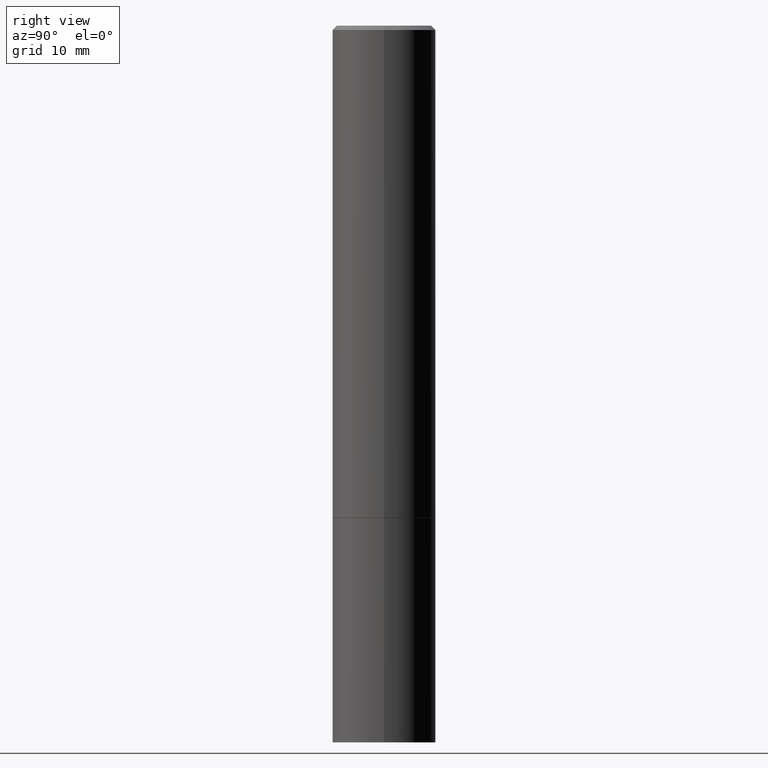
[diagram: clean part render]
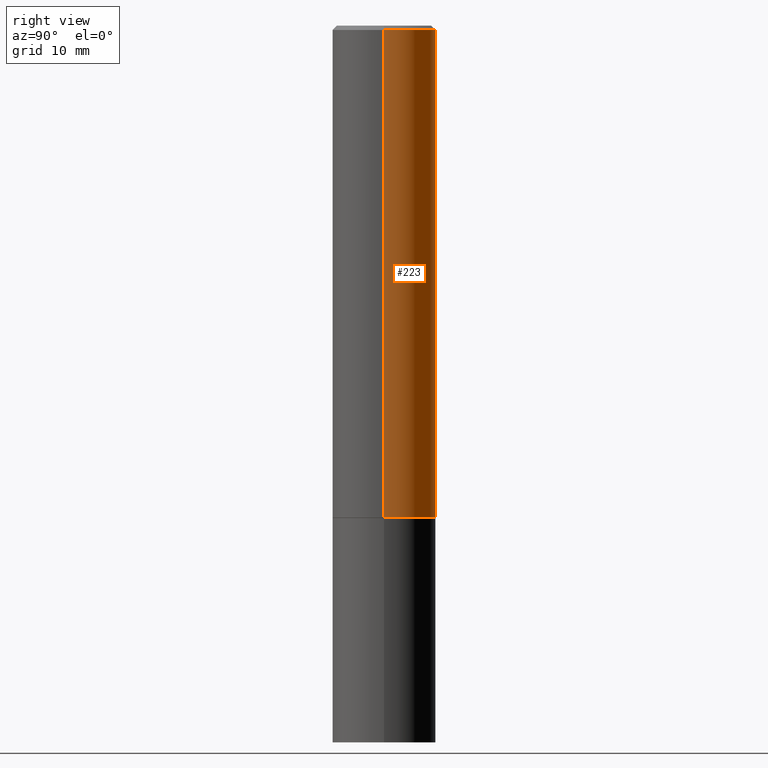
[diagram: same view with one face highlighted and labeled with its STEP entity id]
A machine part, right view. The second image highlights one B-rep face of the part: STEP entity #223.
In plain terms, the highlighted cylindrical surface (partial cylindrical patch) has radius 5.9995 mm, axis along (-0, 0, 1).
Its self-contained STEP definition (entity closure, byte-faithful):
#32 = CIRCLE ( 'NONE', #270, 0.2361999999999999933 ) ;
#42 = EDGE_CURVE ( 'NONE', #76, #285, #226, .T. ) ;
#59 = EDGE_LOOP ( 'NONE', ( #160, #99, #144, #215 ) ) ;
#61 = CARTESIAN_POINT ( 'NONE',  ( 4.890937612370284544E-31, -6.982962677686307633E-17, -0.02000000000000004552 ) ) ;
#67 = CARTESIAN_POINT ( 'NONE',  ( 0.2361999999999999933, -9.481117575628557435E-15, -2.243100000000000094 ) ) ;
#72 = VERTEX_POINT ( 'NONE', #206 ) ;
#76 = VERTEX_POINT ( 'NONE', #229 ) ;
#99 = ORIENTED_EDGE ( 'NONE', *, *, #42, .T. ) ;
#103 = VECTOR ( 'NONE', #330, 39.37007874015748143 ) ;
#111 = CARTESIAN_POINT ( 'NONE',  ( -0.2361999999999998545, 1.678301941865355605E-15, -1.161852468318208056E-29 ) ) ;
#123 = AXIS2_PLACEMENT_3D ( 'NONE', #291, #321, #295 ) ;
#144 = ORIENTED_EDGE ( 'NONE', *, *, #145, .F. ) ;
#145 = EDGE_CURVE ( 'NONE', #72, #285, #361, .T. ) ;
#149 = DIRECTION ( 'NONE',  ( 1.000000000000000000, -6.982962677686266711E-15, 0.000000000000000000 ) ) ;
#155 = DIRECTION ( 'NONE',  ( -2.445468806185136597E-29, 3.491481338843145583E-15, 1.000000000000000000 ) ) ;
#157 = AXIS2_PLACEMENT_3D ( 'NONE', #61, #262, #149 ) ;
#160 = ORIENTED_EDGE ( 'NONE', *, *, #286, .T. ) ;
#177 = FACE_OUTER_BOUND ( 'NONE', #59, .T. ) ;
#186 = CARTESIAN_POINT ( 'NONE',  ( -0.2361999999999997157, 1.579546157692631255E-15, -0.02000000000000004552 ) ) ;
#187 = LINE ( 'NONE', #189, #103 ) ;
#189 = CARTESIAN_POINT ( 'NONE',  ( 0.2361999999999998545, -1.649375784469495145E-15, 1.151752954442999387E-29 ) ) ;
#206 = CARTESIAN_POINT ( 'NONE',  ( 0.2361999999999997157, -1.690279253850496996E-15, -0.02000000000000004552 ) ) ;
#214 = CARTESIAN_POINT ( 'NONE',  ( 5.485431079153880270E-29, -7.831741791159060910E-15, -2.243100000000000094 ) ) ;
#215 = ORIENTED_EDGE ( 'NONE', *, *, #265, .F. ) ;
#223 = ADVANCED_FACE ( 'NONE', ( #177 ), #352, .T. ) ;
#226 = LINE ( 'NONE', #111, #349 ) ;
#229 = CARTESIAN_POINT ( 'NONE',  ( -0.2362000000000000210, -2.272483767102602555E-15, -2.243100000000000094 ) ) ;
#240 = DIRECTION ( 'NONE',  ( 1.000000000000000000, -6.982962677686269077E-15, 0.000000000000000000 ) ) ;
#249 = VERTEX_POINT ( 'NONE', #67 ) ;
#262 = DIRECTION ( 'NONE',  ( -2.445468806185136597E-29, 3.491481338843145583E-15, 1.000000000000000000 ) ) ;
#265 = EDGE_CURVE ( 'NONE', #249, #72, #187, .T. ) ;
#270 = AXIS2_PLACEMENT_3D ( 'NONE', #214, #155, #240 ) ;
#285 = VERTEX_POINT ( 'NONE', #186 ) ;
#286 = EDGE_CURVE ( 'NONE', #249, #76, #32, .T. ) ;
#291 = CARTESIAN_POINT ( 'NONE',  ( 0.000000000000000000, 0.000000000000000000, 0.000000000000000000 ) ) ;
#295 = DIRECTION ( 'NONE',  ( 1.000000000000000000, -6.982962677686266711E-15, 4.876176775795935793E-29 ) ) ;
#321 = DIRECTION ( 'NONE',  ( -2.445468806185136597E-29, 3.491481338843145583E-15, 1.000000000000000000 ) ) ;
#330 = DIRECTION ( 'NONE',  ( -2.445468806185136877E-29, 3.491481338843145188E-15, 1.000000000000000000 ) ) ;
#333 = DIRECTION ( 'NONE',  ( -2.445468806185136877E-29, 3.491481338843145188E-15, 1.000000000000000000 ) ) ;
#349 = VECTOR ( 'NONE', #333, 39.37007874015748143 ) ;
#352 = CYLINDRICAL_SURFACE ( 'NONE', #123, 0.2361999999999998545 ) ;
#361 = CIRCLE ( 'NONE', #157, 0.2361999999999997157 ) ;